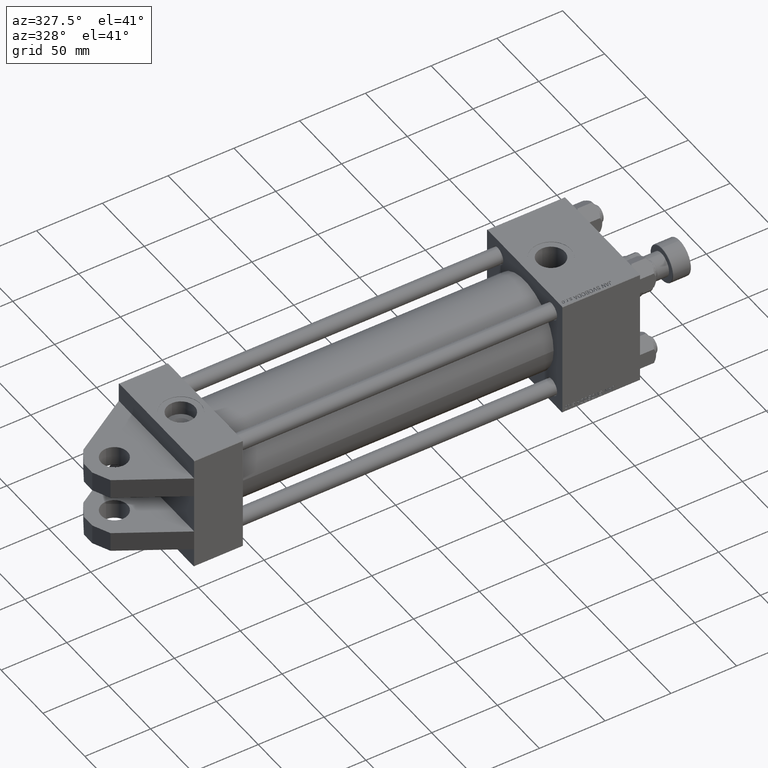
[diagram: clean part render]
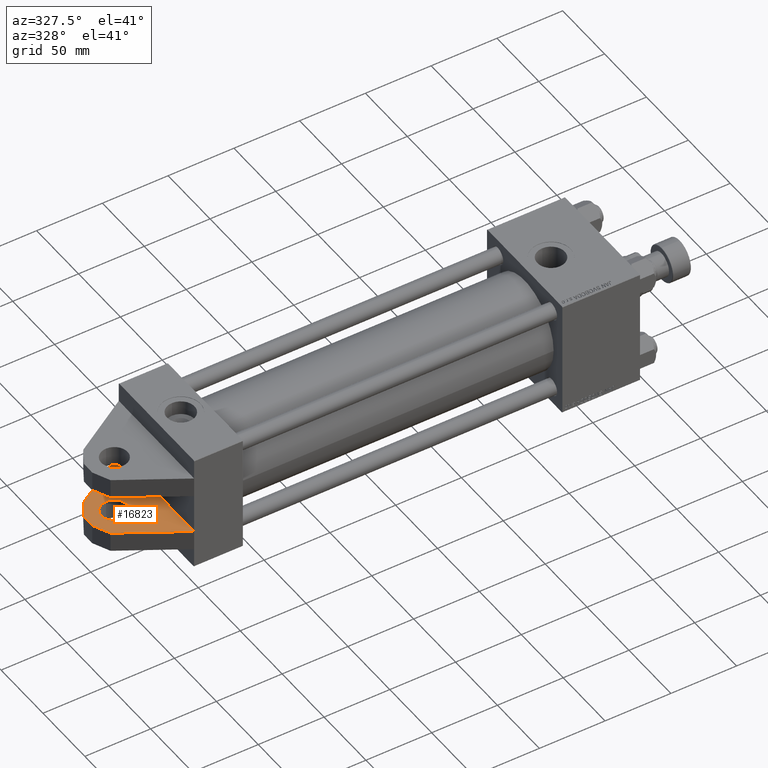
[diagram: same view with one face highlighted and labeled with its STEP entity id]
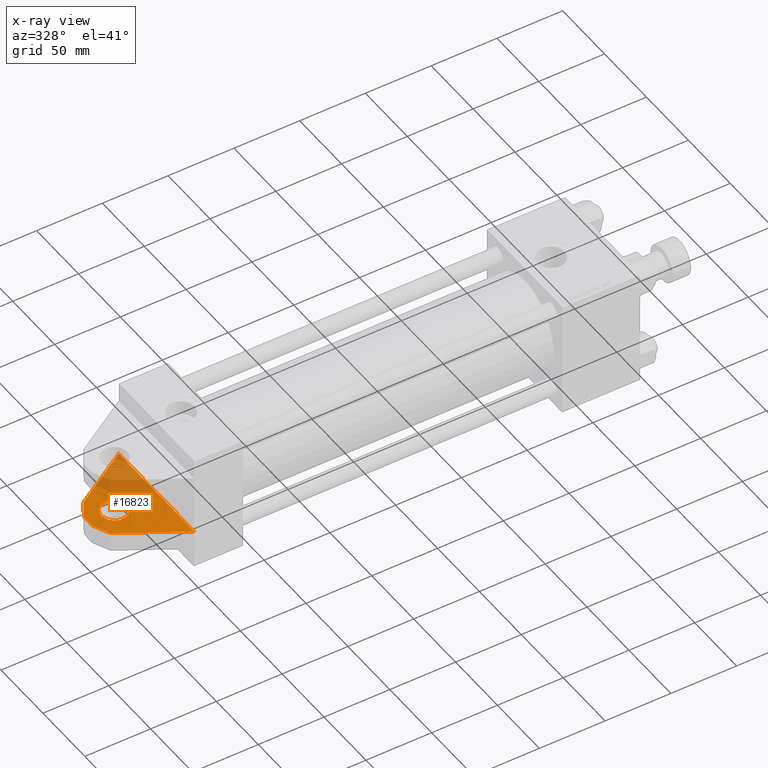
[diagram: x-ray of the same camera — body ghosted, the highlighted face saturated]
A machine part, auxiliary view. The second image highlights one B-rep face of the part: STEP entity #16823.
The next image is the same camera in x-ray: the body ghosted, the highlighted face saturated — about 25% of this face is hidden behind the body in this view.
In plain terms, the highlighted planar face has unit normal (0, 0, -1).
Its self-contained STEP definition (entity closure, byte-faithful):
#284 = CARTESIAN_POINT ( 'NONE',  ( -32.00000000000000000, 15.00000000000000000, -10.00000000000000000 ) ) ;
#1205 = ORIENTED_EDGE ( 'NONE', *, *, #1692, .F. ) ;
#1692 = EDGE_CURVE ( 'NONE', #17028, #30589, #33648, .T. ) ;
#2304 = ORIENTED_EDGE ( 'NONE', *, *, #6009, .F. ) ;
#2868 = AXIS2_PLACEMENT_3D ( 'NONE', #41308, #37604, #13534 ) ;
#3853 = EDGE_CURVE ( 'NONE', #39212, #9997, #50370, .T. ) ;
#4965 = CARTESIAN_POINT ( 'NONE',  ( -32.00000000000000000, 15.00000000000000000, 0.000000000000000000 ) ) ;
#6009 = EDGE_CURVE ( 'NONE', #9997, #25641, #29217, .T. ) ;
#7661 = PLANE ( 'NONE',  #48304 ) ;
#8129 = EDGE_LOOP ( 'NONE', ( #17936, #32719 ) ) ;
#8568 = CARTESIAN_POINT ( 'NONE',  ( -52.00000000000000711, 15.00000000000000000, -5.000000000000000000 ) ) ;
#8659 = DIRECTION ( 'NONE',  ( 0.000000000000000000, 0.000000000000000000, 1.000000000000000000 ) ) ;
#9154 = ORIENTED_EDGE ( 'NONE', *, *, #45634, .F. ) ;
#9997 = VERTEX_POINT ( 'NONE', #35174 ) ;
#10470 = CIRCLE ( 'NONE', #2868, 10.00000000000000000 ) ;
#11262 = VECTOR ( 'NONE', #29154, 1000.000000000000114 ) ;
#11645 = FACE_OUTER_BOUND ( 'NONE', #32471, .T. ) ;
#13534 = DIRECTION ( 'NONE',  ( 0.000000000000000000, 0.000000000000000000, 1.000000000000000000 ) ) ;
#16823 = ADVANCED_FACE ( 'NONE', ( #11645, #52050 ), #7661, .F. ) ;
#17028 = VERTEX_POINT ( 'NONE', #20891 ) ;
#17936 = ORIENTED_EDGE ( 'NONE', *, *, #20179, .T. ) ;
#18264 = EDGE_CURVE ( 'NONE', #25641, #17028, #27439, .T. ) ;
#18406 = VERTEX_POINT ( 'NONE', #36417 ) ;
#19202 = DIRECTION ( 'NONE',  ( -0.4226182617406930020, -0.000000000000000000, 0.9063077870366529343 ) ) ;
#20179 = EDGE_CURVE ( 'NONE', #47738, #42183, #10470, .T. ) ;
#20371 = DIRECTION ( 'NONE',  ( 0.000000000000000000, -0.000000000000000000, 1.000000000000000000 ) ) ;
#20891 = CARTESIAN_POINT ( 'NONE',  ( -44.91602078046192048, 15.00000000000000000, 16.91288539427591431 ) ) ;
#22908 = CARTESIAN_POINT ( 'NONE',  ( -52.00000000000000711, 15.00000000000000000, -5.000000000000000000 ) ) ;
#23526 = EDGE_CURVE ( 'NONE', #42183, #47738, #44346, .T. ) ;
#24166 = DIRECTION ( 'NONE',  ( 0.000000000000000000, 0.000000000000000000, -1.000000000000000000 ) ) ;
#24438 = CARTESIAN_POINT ( 'NONE',  ( 0.000000000000000000, 15.00000000000000000, 45.00000000000000000 ) ) ;
#24662 = VECTOR ( 'NONE', #35421, 999.9999999999998863 ) ;
#25611 = ORIENTED_EDGE ( 'NONE', *, *, #3853, .F. ) ;
#25641 = VERTEX_POINT ( 'NONE', #27816 ) ;
#27439 = LINE ( 'NONE', #39588, #51870 ) ;
#27701 = DIRECTION ( 'NONE',  ( 0.5111096117992851573, 0.000000000000000000, 0.8595155407125482094 ) ) ;
#27816 = CARTESIAN_POINT ( 'NONE',  ( -52.00000000000000711, 15.00000000000000000, 5.000000000000000000 ) ) ;
#28261 = CARTESIAN_POINT ( 'NONE',  ( -46.14251089227400371, 15.00000000000000000, -17.56142592832800631 ) ) ;
#28435 = DIRECTION ( 'NONE',  ( 0.000000000000000000, 0.000000000000000000, 1.000000000000000000 ) ) ;
#29154 = DIRECTION ( 'NONE',  ( 0.8478744008358545248, 0.000000000000000000, 0.5301971335335947666 ) ) ;
#29217 = LINE ( 'NONE', #8568, #41800 ) ;
#29317 = DIRECTION ( 'NONE',  ( 0.000000000000000000, 1.000000000000000000, 0.000000000000000000 ) ) ;
#29821 = CARTESIAN_POINT ( 'NONE',  ( 0.000000000000000000, 15.00000000000000711, 45.00000000000000711 ) ) ;
#29940 = VECTOR ( 'NONE', #19202, 1000.000000000000227 ) ;
#30027 = AXIS2_PLACEMENT_3D ( 'NONE', #4965, #29317, #8659 ) ;
#30589 = VERTEX_POINT ( 'NONE', #29821 ) ;
#32102 = LINE ( 'NONE', #24438, #39105 ) ;
#32107 = CARTESIAN_POINT ( 'NONE',  ( -46.14251089227400371, 15.00000000000000000, -17.56142592832800631 ) ) ;
#32267 = CARTESIAN_POINT ( 'NONE',  ( 0.000000000000000000, 15.00000000000000000, 0.000000000000000000 ) ) ;
#32471 = EDGE_LOOP ( 'NONE', ( #32649, #2304, #25611, #40775, #9154, #1205 ) ) ;
#32649 = ORIENTED_EDGE ( 'NONE', *, *, #18264, .F. ) ;
#32719 = ORIENTED_EDGE ( 'NONE', *, *, #23526, .T. ) ;
#33648 = LINE ( 'NONE', #45247, #11262 ) ;
#35174 = CARTESIAN_POINT ( 'NONE',  ( -52.00000000000000711, 15.00000000000000000, -5.000000000000000000 ) ) ;
#35421 = DIRECTION ( 'NONE',  ( -0.8595155407125480984, -0.000000000000000000, 0.5111096117992853793 ) ) ;
#36417 = CARTESIAN_POINT ( 'NONE',  ( 0.000000000000000000, 15.00000000000000711, -44.99999999999999289 ) ) ;
#37604 = DIRECTION ( 'NONE',  ( 0.000000000000000000, 1.000000000000000000, 0.000000000000000000 ) ) ;
#39105 = VECTOR ( 'NONE', #24166, 1000.000000000000000 ) ;
#39212 = VERTEX_POINT ( 'NONE', #32107 ) ;
#39588 = CARTESIAN_POINT ( 'NONE',  ( -52.00000000000000711, 15.00000000000000000, 5.000000000000000000 ) ) ;
#39933 = DIRECTION ( 'NONE',  ( -0.000000000000000000, 1.000000000000000000, 0.000000000000000000 ) ) ;
#40775 = ORIENTED_EDGE ( 'NONE', *, *, #42969, .F. ) ;
#41308 = CARTESIAN_POINT ( 'NONE',  ( -32.00000000000000000, 15.00000000000000000, 0.000000000000000000 ) ) ;
#41800 = VECTOR ( 'NONE', #28435, 1000.000000000000000 ) ;
#42183 = VERTEX_POINT ( 'NONE', #51077 ) ;
#42969 = EDGE_CURVE ( 'NONE', #18406, #39212, #44366, .T. ) ;
#44346 = CIRCLE ( 'NONE', #30027, 10.00000000000000000 ) ;
#44366 = LINE ( 'NONE', #28261, #24662 ) ;
#45247 = CARTESIAN_POINT ( 'NONE',  ( -44.91602078046192048, 15.00000000000000000, 16.91288539427591431 ) ) ;
#45634 = EDGE_CURVE ( 'NONE', #30589, #18406, #32102, .T. ) ;
#47738 = VERTEX_POINT ( 'NONE', #284 ) ;
#48304 = AXIS2_PLACEMENT_3D ( 'NONE', #32267, #39933, #20371 ) ;
#50370 = LINE ( 'NONE', #22908, #29940 ) ;
#51077 = CARTESIAN_POINT ( 'NONE',  ( -32.00000000000000000, 15.00000000000000000, 10.00000000000000000 ) ) ;
#51870 = VECTOR ( 'NONE', #27701, 999.9999999999998863 ) ;
#52050 = FACE_BOUND ( 'NONE', #8129, .T. ) ;